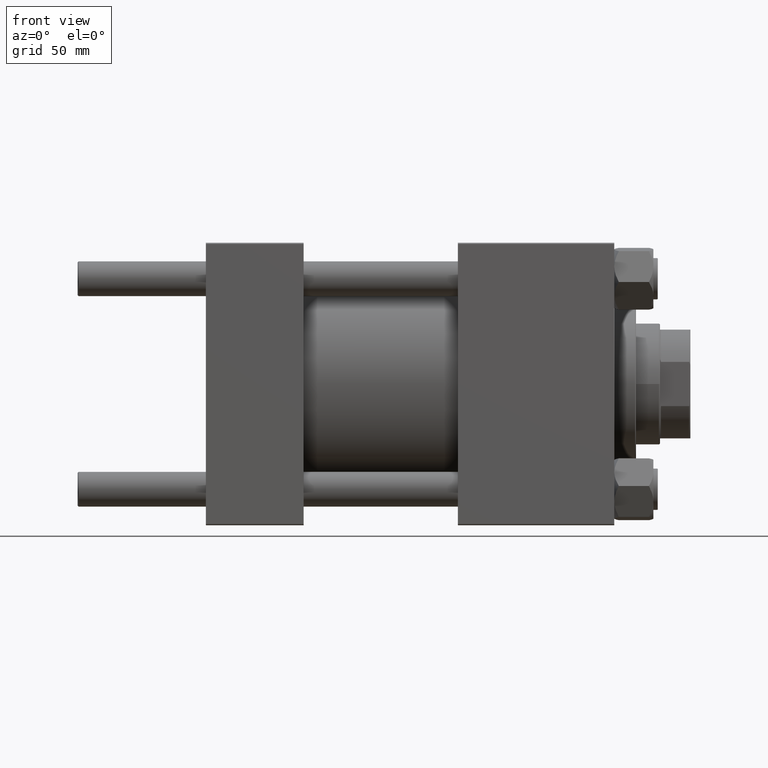
[diagram: clean part render]
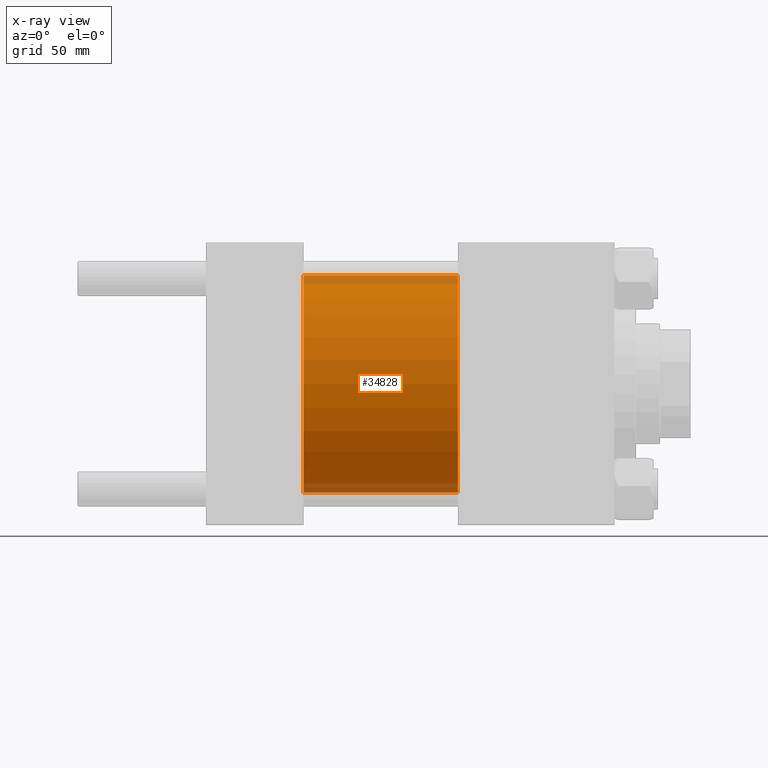
[diagram: x-ray — body ghosted, one internal face saturated and labeled with its STEP entity id]
A machine part, front view, then the same camera in x-ray: the body is ghosted and one INTERNAL B-rep face — a face not visible from any outside direction — is saturated and labeled: STEP entity #34828.
In plain terms, the highlighted cylindrical surface (partial cylindrical patch) has radius 50 mm, axis along (-1, -0, -0).
Its self-contained STEP definition (entity closure, byte-faithful):
#79 = EDGE_CURVE ( 'NONE', #31172, #15540, #9923, .T. ) ;
#190 = AXIS2_PLACEMENT_3D ( 'NONE', #11174, #46632, #38215 ) ;
#421 = DIRECTION ( 'NONE',  ( -1.000000000000000000, -0.000000000000000000, -0.000000000000000000 ) ) ;
#748 = CIRCLE ( 'NONE', #29242, 50.00000000000000000 ) ;
#4031 = CARTESIAN_POINT ( 'NONE',  ( 115.9999999999999858, 0.000000000000000000, 50.00000000000000000 ) ) ;
#5158 = CARTESIAN_POINT ( 'NONE',  ( 115.9999999999999858, 6.123233995736766085E-15, -50.00000000000000000 ) ) ;
#5609 = DIRECTION ( 'NONE',  ( 0.000000000000000000, 0.000000000000000000, -1.000000000000000000 ) ) ;
#7114 = EDGE_LOOP ( 'NONE', ( #43791, #23418, #9943, #26139 ) ) ;
#8366 = CYLINDRICAL_SURFACE ( 'NONE', #48998, 50.00000000000000000 ) ;
#9103 = CARTESIAN_POINT ( 'NONE',  ( 45.00000000000000000, 0.000000000000000000, 50.00000000000000000 ) ) ;
#9923 = CIRCLE ( 'NONE', #190, 50.00000000000000000 ) ;
#9943 = ORIENTED_EDGE ( 'NONE', *, *, #24888, .F. ) ;
#11174 = CARTESIAN_POINT ( 'NONE',  ( 115.9999999999999858, 0.000000000000000000, 0.000000000000000000 ) ) ;
#11683 = CARTESIAN_POINT ( 'NONE',  ( 115.9999999999999858, 0.000000000000000000, 50.00000000000000000 ) ) ;
#13334 = VECTOR ( 'NONE', #421, 1000.000000000000000 ) ;
#15453 = LINE ( 'NONE', #35618, #13334 ) ;
#15540 = VERTEX_POINT ( 'NONE', #5158 ) ;
#16516 = DIRECTION ( 'NONE',  ( -1.000000000000000000, -0.000000000000000000, -0.000000000000000000 ) ) ;
#23418 = ORIENTED_EDGE ( 'NONE', *, *, #44822, .T. ) ;
#23670 = CARTESIAN_POINT ( 'NONE',  ( 115.9999999999999858, 0.000000000000000000, 0.000000000000000000 ) ) ;
#24888 = EDGE_CURVE ( 'NONE', #31416, #32097, #748, .T. ) ;
#25741 = DIRECTION ( 'NONE',  ( 1.000000000000000000, 0.000000000000000000, 0.000000000000000000 ) ) ;
#26030 = CARTESIAN_POINT ( 'NONE',  ( 45.00000000000000000, 6.123233995736766085E-15, -50.00000000000000000 ) ) ;
#26139 = ORIENTED_EDGE ( 'NONE', *, *, #48731, .F. ) ;
#29066 = CARTESIAN_POINT ( 'NONE',  ( 45.00000000000000000, 0.000000000000000000, 0.000000000000000000 ) ) ;
#29242 = AXIS2_PLACEMENT_3D ( 'NONE', #29066, #25741, #5609 ) ;
#31172 = VERTEX_POINT ( 'NONE', #4031 ) ;
#31416 = VERTEX_POINT ( 'NONE', #9103 ) ;
#31591 = DIRECTION ( 'NONE',  ( 0.000000000000000000, 0.000000000000000000, 1.000000000000000000 ) ) ;
#32097 = VERTEX_POINT ( 'NONE', #26030 ) ;
#34828 = ADVANCED_FACE ( 'NONE', ( #43308 ), #8366, .F. ) ;
#34917 = DIRECTION ( 'NONE',  ( -1.000000000000000000, -0.000000000000000000, -0.000000000000000000 ) ) ;
#35618 = CARTESIAN_POINT ( 'NONE',  ( 115.9999999999999858, 6.123233995736766085E-15, -50.00000000000000000 ) ) ;
#38215 = DIRECTION ( 'NONE',  ( 0.000000000000000000, 0.000000000000000000, -1.000000000000000000 ) ) ;
#38986 = LINE ( 'NONE', #11683, #42002 ) ;
#42002 = VECTOR ( 'NONE', #34917, 1000.000000000000000 ) ;
#43308 = FACE_OUTER_BOUND ( 'NONE', #7114, .T. ) ;
#43791 = ORIENTED_EDGE ( 'NONE', *, *, #79, .T. ) ;
#44822 = EDGE_CURVE ( 'NONE', #15540, #32097, #15453, .T. ) ;
#46632 = DIRECTION ( 'NONE',  ( 1.000000000000000000, 0.000000000000000000, 0.000000000000000000 ) ) ;
#48731 = EDGE_CURVE ( 'NONE', #31172, #31416, #38986, .T. ) ;
#48998 = AXIS2_PLACEMENT_3D ( 'NONE', #23670, #16516, #31591 ) ;